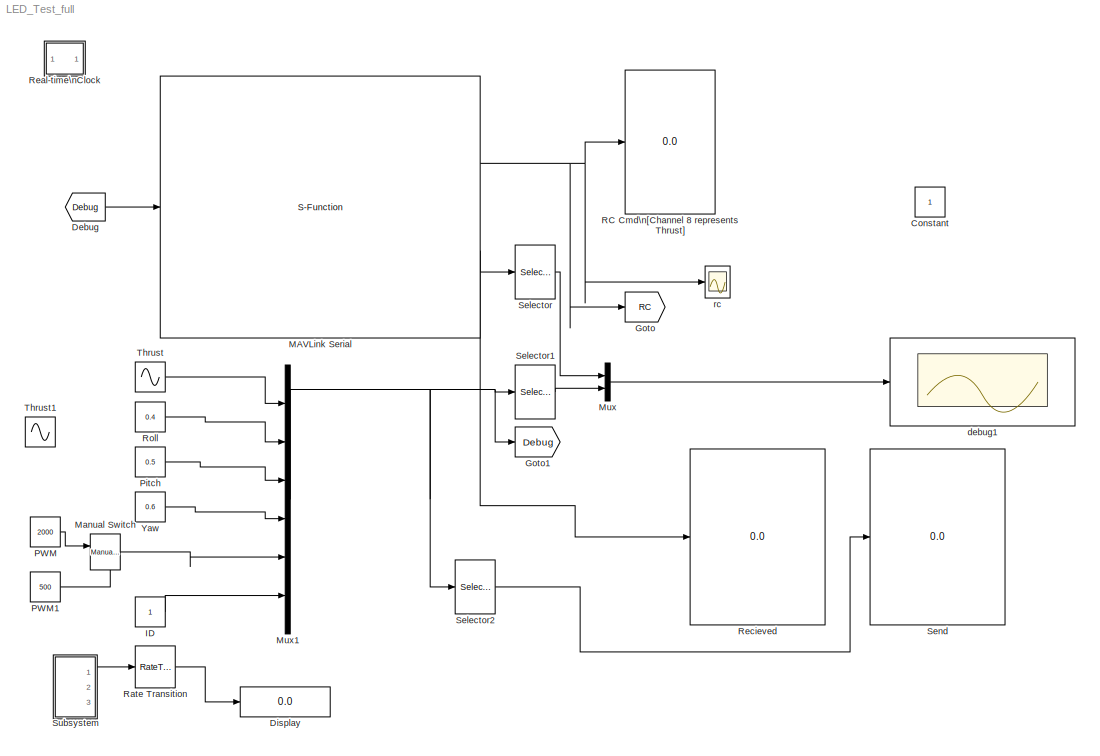
MODEL LED_Test_full
KIND model
CONFIG InitFcn = sample_time_Vicon = 0.0005;\nsample_time=0.02;\nDeltaT = sample_time;\nH0 = -0.36;\nKl = 1;\nOmega_r =1.1; %1.3\n\n
BLOCK [Constant] Constant
  SID = 2683
  SampleTime = 0.004
BLOCK [From] Debug
  GotoTag = Debug
  SID = 2628
  TagVisibility = global
BLOCK [Display] Display
  Decimation = 1
  Lockdown = off
  Ports = [1]
  SID = 2701
BLOCK [Goto] Goto
  GotoTag = RC
  SID = 5
  TagVisibility = global
BLOCK [Goto] Goto1
  GotoTag = Debug
  SID = 2627
  TagVisibility = global
BLOCK [Constant] ID
  SID = 2626
BLOCK [S-Function] MAVLink Serial
  EnableBusSupport = off
  FunctionName = MAVLink_Interface_MultUAV
  MaskCallbackString = |||||||||||||||||||||||||||||||||
  MaskDisplay = % Block image\nimage(imread('10-inch Quad Heat Map.png'));\n\n%Label block\nfprintf('MAVLink Serial\\n%s\\n%dbps', COM_Port,  Baud_Rate)\n\n\n%Label input ports\n\nin = 1;\nif (Quad_1 == 1)\n    port_label('input', in, 'Quad 1');\n    in = in + 1;\nend\nif (Quad_2 == 1)\n    port_label('input', in, 'Quad 2');\n    in = in + 1;\nend\n\nif (Quad_3 == 1)\n    port_label('input', in, 'Quad 3');\n    i...<+2516ch>
  MaskEnableString = on,on,on,on,on,on,on,on,on,on,on,on,on,on,on,on,on,on,on,on,on,on,on,on,on,on,on,on,on,on,on,on,on,on
  MaskIconFrame = on
  MaskIconOpaque = off
  MaskIconRotate = none
  MaskIconUnits = autoscale
  MaskInitialization = MSG_ID_NUM_INPUT = [uint8(196) uint8(197) uint8(198) uint8(199) uint8(200) uint8(201) uint8(202) uint8(203) uint8(204) uint8(205)\n                    uint8(206) uint8(207) uint8(208) uint8(209) uint8(210) uint8(211) uint8(212) uint8(213) uint8(214) uint8(215)\n                    uint8(216) uint8(217) uint8(218) uint8(219) uint8(220) uint8(221) uint8(222) uint8(223) uint8(224) uint8(225)];\nMSG_I...<+556ch>
  MaskPortRotate = default
  MaskPromptString = COM Port|Baud Rate|ATTITUDE|RC CHANNELS SCALED|Quad No 1|Quad No 2|Quad No 3|Quad No 4|Quad No 5|Quad No 6|Quad No 7|Quad No 8|Quad No 9|Quad No 10|Quad No 11|Quad No 12|Quad No 13|Quad No 14|Quad No 15|Quad No 16|Quad No 17|Quad No 18|Quad No 19|Quad No 20|Quad No 21|Quad No 22|Quad No 23|Quad No 24|Quad No 25|Quad No 26|Quad No 27|Quad No 28|Quad No 29|Quad No 30
  MaskStyleString = edit,edit,checkbox,checkbox,checkbox,checkbox,checkbox,checkbox,checkbox,checkbox,checkbox,checkbox,checkbox,checkbox,checkbox,checkbox,checkbox,checkbox,checkbox,checkbox,checkbox,checkbox,checkbox,checkbox,checkbox,checkbox,checkbox,checkbox,checkbox,checkbox,checkbox,checkbox,checkbox,checkbox
  MaskTabNameString = Setting,Setting,Output Message,Output Message,Input Message,Input Message,Input Message,Input Message,Input Message,Input Message,Input Message,Input Message,Input Message,Input Message,Input Message,Input Message,Input Message,Input Message,Input Message,Input Message,Input Message,Input Message,Input Message,Input Message,Input Message,Input Message,Input Message,Input Message,Input Message,Inpu...<+65ch>
  MaskToolTipString = on,on,on,on,on,on,on,on,on,on,on,on,on,on,on,on,on,on,on,on,on,on,on,on,on,on,on,on,on,on,on,on,on,on
  MaskTunableValueString = on,on,on,on,on,on,on,on,on,on,on,on,on,on,on,on,on,on,on,on,on,on,on,on,on,on,on,on,on,on,on,on,on,on
  MaskValueString = 'COM3'|57600|on|on|on|off|off|off|off|off|off|off|off|off|off|off|off|off|off|off|off|off|off|off|off|off|off|off|off|off|off|off|off|off
  MaskVariables = COM_Port=@1;Baud_Rate=@2;ATTITUDE_OUT=@3;RC_SCALED=@4;Quad_1=@5;Quad_2=@6;Quad_3=@7;Quad_4=@8;Quad_5=@9;Quad_6=@10;Quad_7=@11;Quad_8=@12;Quad_9=@13;Quad_10=@14;Quad_11=@15;Quad_12=@16;Quad_13=@17;Quad_14=@18;Quad_15=@19;Quad_16=@20;Quad_17=@21;Quad_18=@22;Quad_19=@23;Quad_20=@24;Quad_21=@25;Quad_22=@26;Quad_23=@27;Quad_24=@28;Quad_25=@29;Quad_26=@30;Quad_27=@31;Quad_28=@32;Quad_29=@33;Quad_30=@34;
  MaskVisibilityString = on,on,on,on,on,on,on,on,on,on,on,on,on,on,on,on,on,on,on,on,on,on,on,on,on,on,on,on,on,on,on,on,on,on
  Parameters = COM_Port,Baud_Rate,MSG_INPUT,MSG_OUTPUT
  Ports = [1, 2]
  SID = 2618
BLOCK [Reference] Manual Switch  REF=simulink/Signal\nRouting/Manual Switch
  FunctionWithSeparateData = off
  GeneratePreprocessorConditionals = off
  Ports = [2, 1]
  RTWMemSecDataConstants = Inherit from model
  RTWMemSecDataInternal = Inherit from model
  RTWMemSecDataParameters = Inherit from model
  RTWMemSecFuncExecute = Inherit from model
  RTWMemSecFuncInitTerm = Inherit from model
  SID = 2645
  ShowPortLabels = FromPortIcon
  SourceBlock = simulink/Signal\nRouting/Manual Switch
  SourceType = Manual Switch
  SystemSampleTime = -1
  action = 0
  sw = 1
  varsize = off
BLOCK [Mux] Mux
  DisplayOption = bar
  Inputs = 2
  Ports = [2, 1]
  SID = 2621
BLOCK [Mux] Mux1
  DisplayOption = bar
  Inputs = 6
  Ports = [6, 1]
  SID = 2641
BLOCK [Constant] PWM
  SID = 2636
  Value = 2000
BLOCK [Constant] PWM1
  SID = 2646
  Value = 500
BLOCK [Constant] Pitch
  SID = 2637
  Value = 0.5
BLOCK [Display] RC Cmd\n[Channel 8 represents Thrust]
  Decimation = 1
  Lockdown = off
  Ports = [1]
  SID = 55
BLOCK [RateTransition] Rate Transition
  OutPortSampleTimeOpt = Inherit
  SID = 2680
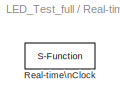
BLOCK [SubSystem] Real-time\nClock
  FunctionWithSeparateData = off
  MaskCallbackString = |
  MaskDescription = Real-time Synchronization Block
  MaskDisplay = plot(0,0,100,100,[40,60,60,54,54,64,69,76,82,77,81,83,83,81,78,74,70,64,57,49,41,35,32,30,30,31,34,40,47,47,40,40],[90,90,85,85,80,79,76,87,80,70,64,57,49,41,33,28,24,22,21,23,25,31,37,46,56,65,73,78,80,85,85,90],[69,53,53],[64,50,73])
  MaskEnableString = on,on
  MaskHelp = This block synchronizes simulation time with the PC real-time clock or UNIX system clock. The first dialog entry is the period at which the clock is checked to insure real-time synchronization. The second dialog entry is the number of seconds that the simulation time must be within real-time before a warning is printed.
  MaskHideContents = off
  MaskIconFrame = on
  MaskIconOpaque = on
  MaskIconRotate = none
  MaskIconUnits = autoscale
  MaskPortRotate = default
  MaskPromptString = Synchronize with real-time every n seconds:|Real-time warning tolerance (seconds):
  MaskStyleString = edit,edit
  MaskToolTipString = on,on
  MaskTunableValueString = on,on
  MaskType = Real-time Clock
  MaskValueString = sample_time|0.03
  MaskVariables = sample_time=@1;tolerance=@2;
  MaskVisibilityString = on,on
  MinAlgLoopOccurrences = off
  Opaque = off
  Ports = []
  PropExecContextOutsideSubsystem = off
  RTWSystemCode = Auto
  RequestExecContextInheritance = off
  SID = 607
  ShowPortLabels = none
BLOCK [S-Function] Real-time\nClock/Real-time\nClock
  EnableBusSupport = off
  FunctionName = rtclock
  Parameters = sample_time, tolerance
  Ports = []
  SID = 608
BLOCK [Display] Recieved
  Decimation = 1
  Lockdown = off
  Ports = [1]
  SID = 2632
BLOCK [Constant] Roll
  SID = 2638
  Value = 0.4
BLOCK [Selector] Selector
  IndexOptions = Index vector (dialog)
  Indices = [3]
  InputPortWidth = 6
  OutputSizes = 1
  Ports = [1, 1]
  SID = 2623
BLOCK [Selector] Selector1
  IndexOptions = Index vector (dialog)
  Indices = 1
  InputPortWidth = 6
  OutputSizes = 1
  Ports = [1, 1]
  SID = 2624
BLOCK [Selector] Selector2
  IndexOptions = Index vector (dialog)
  Indices = [6 5 1 2 3 4]
  InputPortWidth = 6
  OutputSizes = 1
  Ports = [1, 1]
  SID = 2644
BLOCK [Display] Send
  Decimation = 1
  Lockdown = off
  Ports = [1]
  SID = 2643
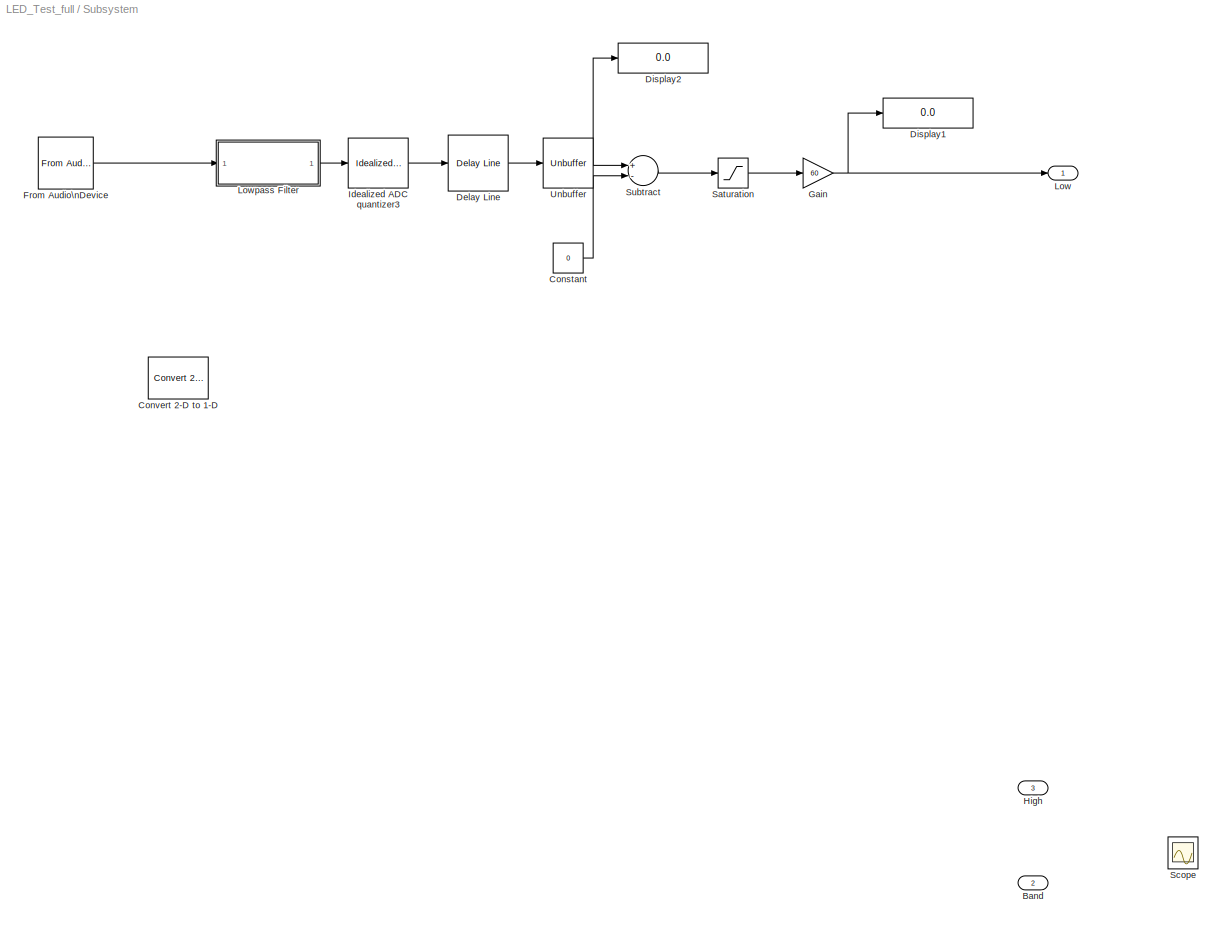
BLOCK [SubSystem] Subsystem
  FunctionWithSeparateData = off
  MaskHideContents = off
  MinAlgLoopOccurrences = off
  Opaque = off
  Ports = [0, 3]
  PropExecContextOutsideSubsystem = off
  RTWSystemCode = Auto
  RequestExecContextInheritance = off
  SID = 2648
  TreatAsAtomicUnit = on
BLOCK [Outport] Subsystem/Band
  IconDisplay = Port number
  Port = 2
  SID = 2668
BLOCK [Constant] Subsystem/Constant
  SID = 2703
  Value = 0
BLOCK [Reference] Subsystem/Convert 2-D to 1-D  REF=dspsigattribs/Convert 2-D to 1-D
  FunctionWithSeparateData = off
  GeneratePreprocessorConditionals = off
  Ports = [1, 1]
  RTWMemSecDataConstants = Inherit from model
  RTWMemSecDataInternal = Inherit from model
  RTWMemSecDataParameters = Inherit from model
  RTWMemSecFuncExecute = Inherit from model
  RTWMemSecFuncInitTerm = Inherit from model
  SID = 2707
  ShowPortLabels = none
  SourceBlock = dspsigattribs/Convert 2-D to 1-D
  SourceType = Convert 2-D to 1-D
  SystemSampleTime = -1
BLOCK [Reference] Subsystem/Delay Line  REF=dspbuff3/Delay Line
  Ports = [1, 1]
  SID = 2699
  SourceBlock = dspbuff3/Delay Line
  SourceType = Delay Line
  TreatMby1Signals = One channel
  UserData = DataTag0
  UserDataPersistent = on
  directfeed = off
  enable_output = off
  hold_output = off
  ic = 0
  siz = 100
BLOCK [Display] Subsystem/Display1
  Decimation = 1
  Lockdown = off
  Ports = [1]
  SID = 2685
BLOCK [Display] Subsystem/Display2
  Decimation = 1
  Lockdown = off
  Ports = [1]
  SID = 2702
BLOCK [Reference] Subsystem/From Audio\nDevice  REF=dspsrcs4/From Audio\nDevice
  Ports = [0, 1]
  SID = 2691
  SourceBlock = dspsrcs4/From Audio\nDevice
  SourceType = From Audio Device
  autoBufferSize = on
  bufferSize = 4096
  deviceDatatype = Determine from output data type
  deviceName = Microphone (Realtek High Definition Audio)
  frameSize = 2000
  numChannels = 1
  outputDatatype = double
  queueDuration = 1.0
  sampleRate = 2000
BLOCK [Gain] Subsystem/Gain
  Gain = 60
  OutDataTypeStr = Inherit: Inherit via internal rule
  ParamDataTypeStr = Inherit: Inherit via internal rule
  SID = 2705
  SaturateOnIntegerOverflow = off
BLOCK [Outport] Subsystem/High
  IconDisplay = Port number
  Port = 3
  SID = 2667
BLOCK [Reference] Subsystem/Idealized ADC quantizer3  REF=simulink_extras/Additional\nDiscrete/Idealized ADC quantizer
  AttributesFormatString = (settings: %<NumberOfConverterBits>-bit converter\\nVmin: %<Vmin>, Vmax: %<Vmax>)
  FunctionWithSeparateData = off
  GeneratePreprocessorConditionals = off
  NumberOfConverterBits = 16
  OutputDataType = double
  OutputNegativeValues = off
  Ports = [1, 1]
  RTWMemSecDataConstants = Inherit from model
  RTWMemSecDataInternal = Inherit from model
  RTWMemSecDataParameters = Inherit from model
  RTWMemSecFuncExecute = Inherit from model
  RTWMemSecFuncInitTerm = Inherit from model
  SID = 2661
  ShowPortLabels = FromPortIcon
  SourceBlock = simulink_extras/Additional\nDiscrete/Idealized ADC quantizer
  SourceType = IdealADC
  SystemSampleTime = -1
  Vmax = 5
  Vmin = 0
BLOCK [Outport] Subsystem/Low
  IconDisplay = Port number
  SID = 2694
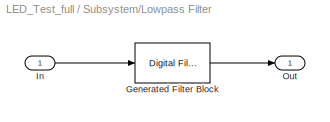
BLOCK [SubSystem] Subsystem/Lowpass Filter
  CopyFcn = fdesignblkfcn(gcbh, {'CopyFcn'});
  DialogController = fdesignblkfcn
  DialogControllerArgs = DataTag2
  FunctionWithSeparateData = off
  InitFcn = fdesignblkfcn(gcbh, {'InitFcn'});
  MaskCapabilities = dspmaskedcaps(gcbh)
  MaskDescription = Design a lowpass filter
  MaskDisplay = disp('Lowpass')
  MaskHelp = helpview(mapfilelocation('dsp'), 'dsplowpassfilter');\n
  MaskHideContents = off
  MaskIconFrame = on
  MaskIconOpaque = on
  MaskIconRotate = none
  MaskIconUnits = autoscale
  MaskPortRotate = default
  MaskSelfModifiable = on
  MaskType = Lowpass Filter
  MinAlgLoopOccurrences = off
  Opaque = off
  Ports = [1, 1]
  PropExecContextOutsideSubsystem = off
  RTWSystemCode = Auto
  RequestExecContextInheritance = off
  SID = 2689
  UserData = DataTag1
  UserDataPersistent = on
BLOCK [Reference] Subsystem/Lowpass Filter/Generated Filter Block  REF=dsparch4/Digital Filter
  AllPoleFiltStruct = Direct form
  BiQuadCoeffs = [1 0.3 0.4 1 0.1 0.2]
  CoeffSource = Specify via dialog
  DenCoeffs = [1 0.1]
  FIRFiltStruct = Direct form
  FiltPerSampPopup = One filter per frame
  FilterSource = Specify via dialog
  IC = 0
  ICden = 0
  ICnum = 0
  IIRFiltStruct = Direct form II transposed
  InputProcessing = Columns as channels (frame based)
  LatticeCoeffs = [0.2 0.4]
  LockScale = off
  NumCoeffs = [-0.00242287385232699 -0.00208324498207929 0.00677034464011864 0.016731945423489 0.0111170760810776 -0.00623114541414452 -0.00840161718602686 0.00925679761513803 0.0129828838088558 -0.010121234703279 -0.0182735187337825 0.011431962071778 0.0261758885804076 -0.012489027835323 -0.0379966231454636 0.0133889451993669 0.0581554658147299 -0.0140480435158089 -0.102724668578822 0.0144622757712384 0.317166...<+437ch>
  Ports = [1, 1]
  SID = 2689:738
  ScaleValues = 1
  SourceBlock = dsparch4/Digital Filter
  SourceType = Digital Filter
  Tag = BlockMethodSubSystem
  TypePopup = FIR (all zeros)
  UserData = DataTag3
  UserDataPersistent = on
  accumFracLength = 30
  accumMode = Same as product output
  accumWordLength = 32
  additionalParams = off
  allowOverrides = on
  denIgnore = on
  dfiltObjectName = dfilt.dffir([1 2 1])
  firstCoeffFracLength = 15
  firstCoeffMode = Same word length as input
  firstCoeffWordLength = 16
  memoryFracLength = 15
  memoryMode = Same as accumulator
  memoryWordLength = 16
  multiplicandFracLength = 30
  multiplicandMode = Same as output
  multiplicandWordLength = 32
  outputFracLength = 15
  outputMode = Same as accumulator
  outputWordLength = 16
  overflowMode = off
  prodOutputFracLength = 30
  prodOutputMode = Same as input
  prodOutputWordLength = 32
  roundingMode = Floor
  scaleValueFracLength = 14
  secondCoeffFracLength = 15
  secondCoeffMode = Same as numerator
  secondCoeffWordLength = 16
  showAcc = off
  showCoeff = off
  showMem = off
  showMpy = off
  showOut = off
  stageIOMode = Same as input
  stageIOWordLength = 16
  stageInFracLength = 15
  stageOutFracLength = 15
  tapSumFracLength = 30
  tapSumMode = Same as input
  tapSumWordLength = 32
  thirdCoeffFracLength = 15
  thirdCoeffMode = Same as input
  thirdCoeffWordLength = 16
BLOCK [Inport] Subsystem/Lowpass Filter/In
  IconDisplay = Port number
  SID = 2689:12
BLOCK [Outport] Subsystem/Lowpass Filter/Out
  IconDisplay = Port number
  SID = 2689:739
BLOCK [Saturate] Subsystem/Saturation
  InputPortMap = u0
  LowerLimit = 0
  Ports = [1, 1]
  SID = 2704
  UpperLimit = 1000
BLOCK [Scope] Subsystem/Scope
  DataFormat = StructureWithTime
  Floating = off
  NumInputPorts = 1
  Ports = [1]
  SID = 2690
  SampleTime = 0
  YMax = 3000
  YMin = 0
BLOCK [Sum] Subsystem/Subtract
  InputSameDT = off
  Inputs = +-
  OutDataTypeStr = Inherit: Inherit via internal rule
  Ports = [2, 1]
  SID = 2706
  SaturateOnIntegerOverflow = off
BLOCK [Unbuffer] Subsystem/Unbuffer
  Ports = [1, 1]
  SID = 2700
  SampleBasedProcessing = Same as frame based
BLOCK [Sin] Thrust
  Ports = [0, 1]
  SID = 2639
  SampleTime = 0
BLOCK [Sin] Thrust1
  Amplitude = 500
  Bias = 1000
  Ports = [0, 1]
  SID = 2647
  SampleTime = 0
BLOCK [Constant] Yaw
  SID = 2640
  Value = 0.6
BLOCK [Scope] debug1
  DataFormat = StructureWithTime
  Floating = off
  LimitDataPoints = off
  NumInputPorts = 1
  Ports = [1]
  SID = 2629
  SampleTime = 0
  SaveName = ScopeData2
  TimeRange = 10
  YMax = 1
  YMin = -1
  ZoomMode = xonly
BLOCK [Scope] rc
  DataFormat = StructureWithTime
  Floating = off
  LimitDataPoints = off
  NumInputPorts = 1
  Ports = [1]
  SID = 1363
  SampleTime = 0
  SaveName = ScopeData1
  TimeRange = 10
  YMax = 0.05
  YMin = -1
LINE Debug:1 -> MAVLink Serial:1
LINE ID:1 -> Mux1:6
NET MAVLink Serial:1 -> Goto:1, RC Cmd\n[Channel 8 represents Thrust]:1, rc:1
NET MAVLink Serial:2 -> Recieved:1, Selector:1
LINE Manual Switch:1 -> Mux1:5
NET Mux1:1 -> Goto1:1, Selector1:1, Selector2:1
LINE Mux:1 -> debug1:1
LINE PWM1:1 -> Manual Switch:2
LINE PWM:1 -> Manual Switch:1
LINE Pitch:1 -> Mux1:3
LINE Rate Transition:1 -> Display:1
LINE Roll:1 -> Mux1:2
LINE Selector1:1 -> Mux:2
LINE Selector2:1 -> Send:1
LINE Selector:1 -> Mux:1
LINE Subsystem/Constant:1 -> Subsystem/Subtract:2
LINE Subsystem/Delay Line:1 -> Subsystem/Unbuffer:1
LINE Subsystem/From Audio\nDevice:1 -> Subsystem/Lowpass Filter:1
NET Subsystem/Gain:1 -> Subsystem/Display1:1, Subsystem/Low:1
LINE Subsystem/Idealized ADC quantizer3:1 -> Subsystem/Delay Line:1
LINE Subsystem/Lowpass Filter/Generated Filter Block:1 -> Subsystem/Lowpass Filter/Out:1
LINE Subsystem/Lowpass Filter/In:1 -> Subsystem/Lowpass Filter/Generated Filter Block:1
LINE Subsystem/Lowpass Filter:1 -> Subsystem/Idealized ADC quantizer3:1
LINE Subsystem/Saturation:1 -> Subsystem/Gain:1
LINE Subsystem/Subtract:1 -> Subsystem/Saturation:1
NET Subsystem/Unbuffer:1 -> Subsystem/Display2:1, Subsystem/Subtract:1
LINE Subsystem:1 -> Rate Transition:1
LINE Thrust:1 -> Mux1:1
LINE Yaw:1 -> Mux1:4
note: NET lines group one-source signal fan-out (src -> all destinations, sorted); 1:1 wires keep LINE
